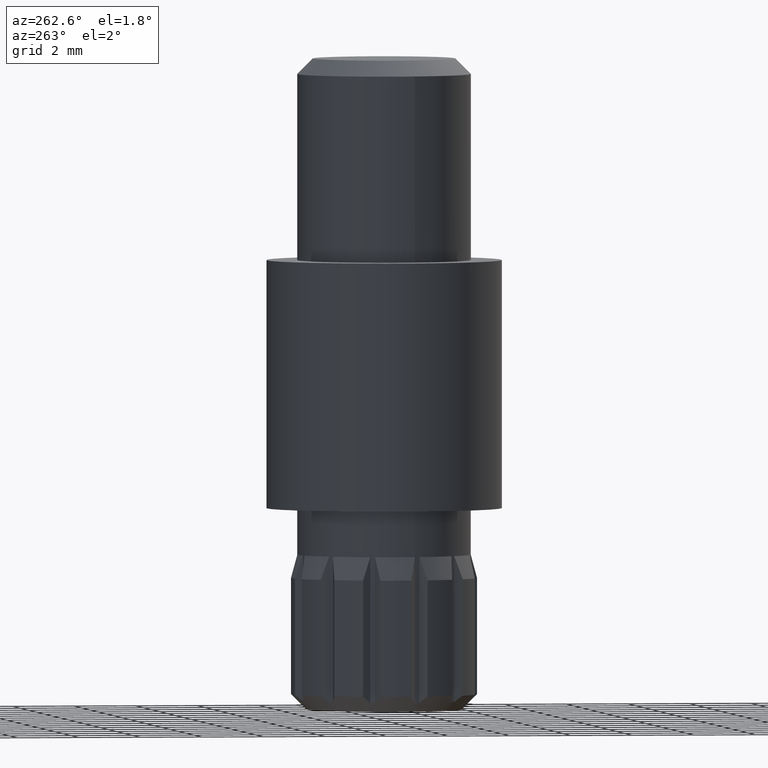
[diagram: clean part render]
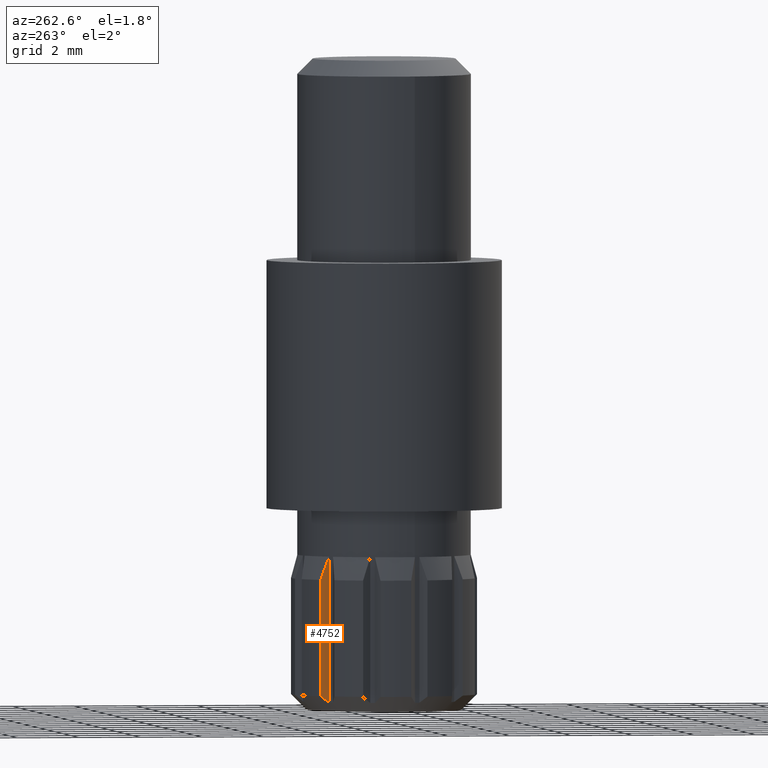
[diagram: same view with one face highlighted and labeled with its STEP entity id]
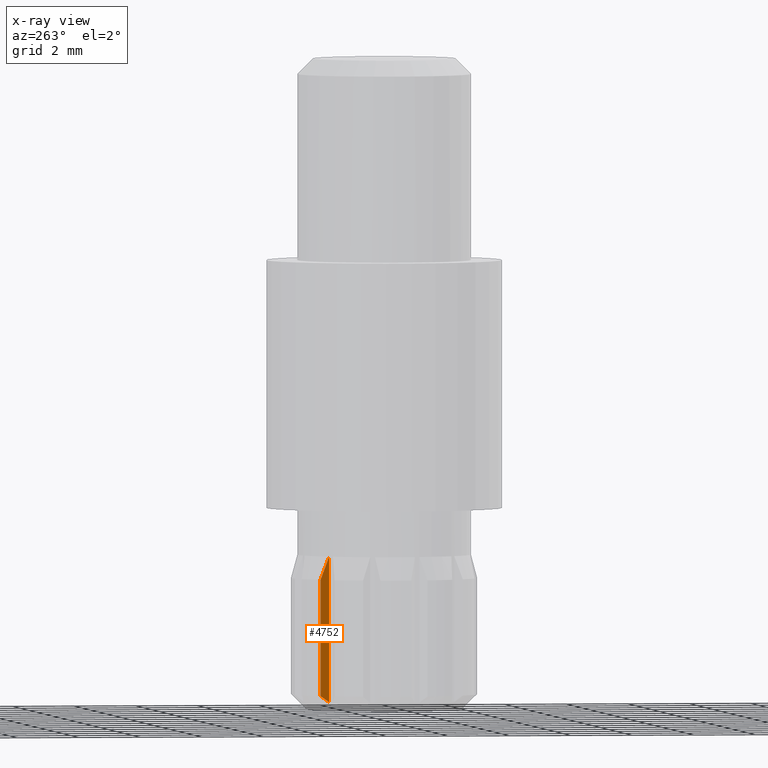
[diagram: x-ray of the same camera — body ghosted, the highlighted face saturated]
A machine part, auxiliary view. The second image highlights one B-rep face of the part: STEP entity #4752.
The next image is the same camera in x-ray: the body ghosted, the highlighted face saturated — about 0% of this face is hidden behind the body in this view.
In plain terms, the highlighted planar face has unit normal (-0.999, 0.0454, 0).
Its self-contained STEP definition (entity closure, byte-faithful):
#621 = CARTESIAN_POINT ( 'NONE',  ( -1.924670895599491116, 2.033627779027482596, 0.2999999999999996003 ) ) ;
#836 = CARTESIAN_POINT ( 'NONE',  ( -1.912032647667093910, 2.311737691489923918, 0.4999999999999998890 ) ) ;
#874 = EDGE_CURVE ( 'NONE', #2983, #9225, #11137, .T. ) ;
#933 = DIRECTION ( 'NONE',  ( 0.000000000000000000, 0.000000000000000000, -1.000000000000000000 ) ) ;
#968 = CARTESIAN_POINT ( 'NONE',  ( -1.924670895599491116, 2.033627779027482596, 5.000000000000000888 ) ) ;
#1689 = CARTESIAN_POINT ( 'NONE',  ( -1.916200600912719043, 2.220020143417694936, 0.4319807832766572875 ) ) ;
#1703 = B_SPLINE_CURVE_WITH_KNOTS ( 'NONE', 3,
 ( #7063, #7952, #4168, #8950 ),
 .UNSPECIFIED., .F., .F.,
 ( 4, 4 ),
 ( 2.125509851734810367E-07, 0.0008002155814297953230 ),
 .UNSPECIFIED. ) ;
#2252 = EDGE_LOOP ( 'NONE', ( #4027, #11807, #5534, #3621 ) ) ;
#2751 = CARTESIAN_POINT ( 'NONE',  ( -1.912032647667093910, 2.311737691489923918, 0.4999999999999998890 ) ) ;
#2864 = VERTEX_POINT ( 'NONE', #2751 ) ;
#2950 = AXIS2_PLACEMENT_3D ( 'NONE', #8672, #4800, #3006 ) ;
#2983 = VERTEX_POINT ( 'NONE', #968 ) ;
#3006 = DIRECTION ( 'NONE',  ( -0.04539650666531525741, -0.9989690471594133703, 0.000000000000000000 ) ) ;
#3621 = ORIENTED_EDGE ( 'NONE', *, *, #874, .F. ) ;
#4027 = ORIENTED_EDGE ( 'NONE', *, *, #6378, .F. ) ;
#4168 = CARTESIAN_POINT ( 'NONE',  ( -1.920330675035790691, 2.129136141222543355, 4.751060318361801649 ) ) ;
#4719 = CARTESIAN_POINT ( 'NONE',  ( -1.912032647667094132, 2.311737691489924362, 5.000000000000000000 ) ) ;
#4752 = ADVANCED_FACE ( 'NONE', ( #5879 ), #10505, .T. ) ;
#4800 = DIRECTION ( 'NONE',  ( -0.9989690471594133703, 0.04539650666531525741, 0.000000000000000000 ) ) ;
#5474 = VECTOR ( 'NONE', #9426, 1000.000000000000000 ) ;
#5534 = ORIENTED_EDGE ( 'NONE', *, *, #9568, .F. ) ;
#5879 = FACE_OUTER_BOUND ( 'NONE', #2252, .T. ) ;
#6364 = VERTEX_POINT ( 'NONE', #10993 ) ;
#6378 = EDGE_CURVE ( 'NONE', #6364, #2983, #1703, .T. ) ;
#7063 = CARTESIAN_POINT ( 'NONE',  ( -1.912032647667093910, 2.311737691489925250, 4.250000000000000000 ) ) ;
#7302 = CARTESIAN_POINT ( 'NONE',  ( -1.924670895599491116, 2.033627779027482596, 0.2999999999999996003 ) ) ;
#7348 = CARTESIAN_POINT ( 'NONE',  ( -1.920410119468668242, 2.127387933370367357, 0.3651688080806900216 ) ) ;
#7442 = LINE ( 'NONE', #4719, #7736 ) ;
#7736 = VECTOR ( 'NONE', #933, 1000.000000000000000 ) ;
#7952 = CARTESIAN_POINT ( 'NONE',  ( -1.916132568165353600, 2.221517232374612849, 4.500908567543602246 ) ) ;
#8457 = CARTESIAN_POINT ( 'NONE',  ( -1.924670895599491116, 2.033627779027482596, 5.000000000000000000 ) ) ;
#8601 = B_SPLINE_CURVE_WITH_KNOTS ( 'NONE', 3,
 ( #7302, #7348, #1689, #836 ),
 .UNSPECIFIED., .F., .F.,
 ( 4, 4 ),
 ( 2.437016887059737188E-07, 0.0003430335042216859634 ),
 .UNSPECIFIED. ) ;
#8672 = CARTESIAN_POINT ( 'NONE',  ( -1.924670895599491116, 2.033627779027482596, 5.000000000000000000 ) ) ;
#8950 = CARTESIAN_POINT ( 'NONE',  ( -1.924670895599491116, 2.033627779027482596, 5.000000000000000888 ) ) ;
#9225 = VERTEX_POINT ( 'NONE', #621 ) ;
#9426 = DIRECTION ( 'NONE',  ( 0.000000000000000000, 0.000000000000000000, -1.000000000000000000 ) ) ;
#9568 = EDGE_CURVE ( 'NONE', #9225, #2864, #8601, .T. ) ;
#10045 = EDGE_CURVE ( 'NONE', #6364, #2864, #7442, .T. ) ;
#10505 = PLANE ( 'NONE',  #2950 ) ;
#10993 = CARTESIAN_POINT ( 'NONE',  ( -1.912032647667093910, 2.311737691489925250, 4.250000000000000000 ) ) ;
#11137 = LINE ( 'NONE', #8457, #5474 ) ;
#11807 = ORIENTED_EDGE ( 'NONE', *, *, #10045, .T. ) ;